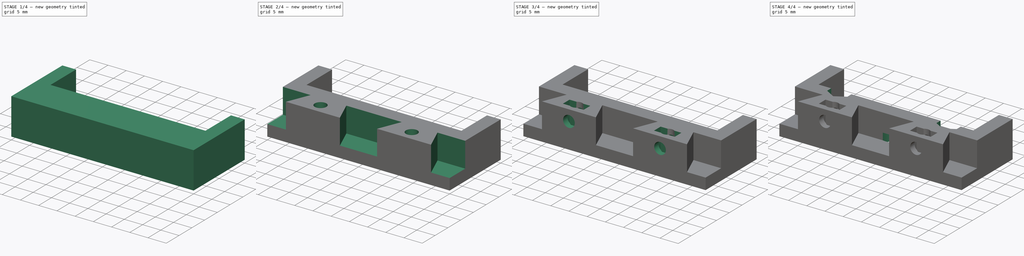
[diagram: build sequence overview — one tinted view per stage of 4, left to right]
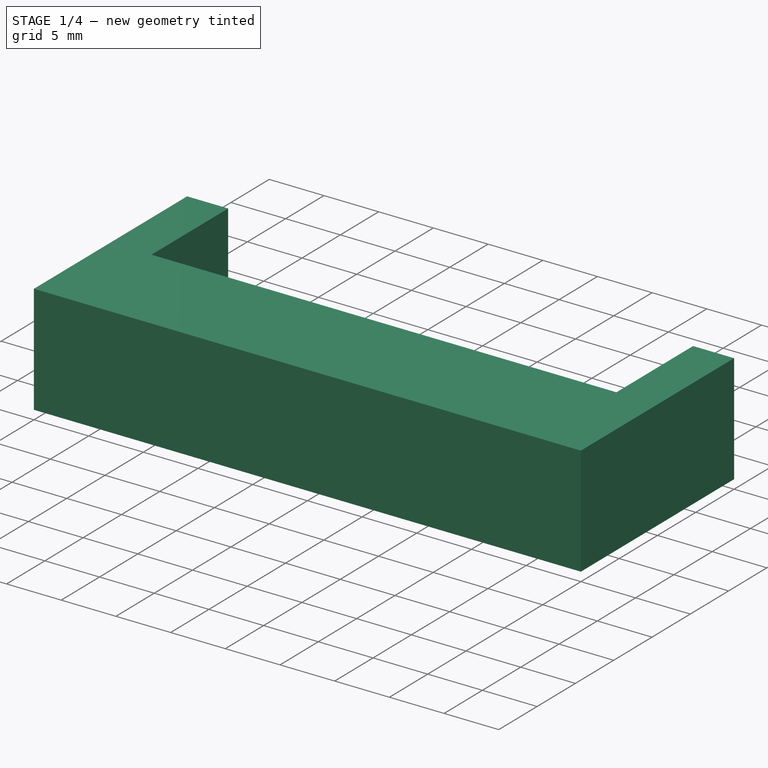
[diagram: stage 1 of 4 — iso view after this stage's code; geometry added in this stage tinted green]
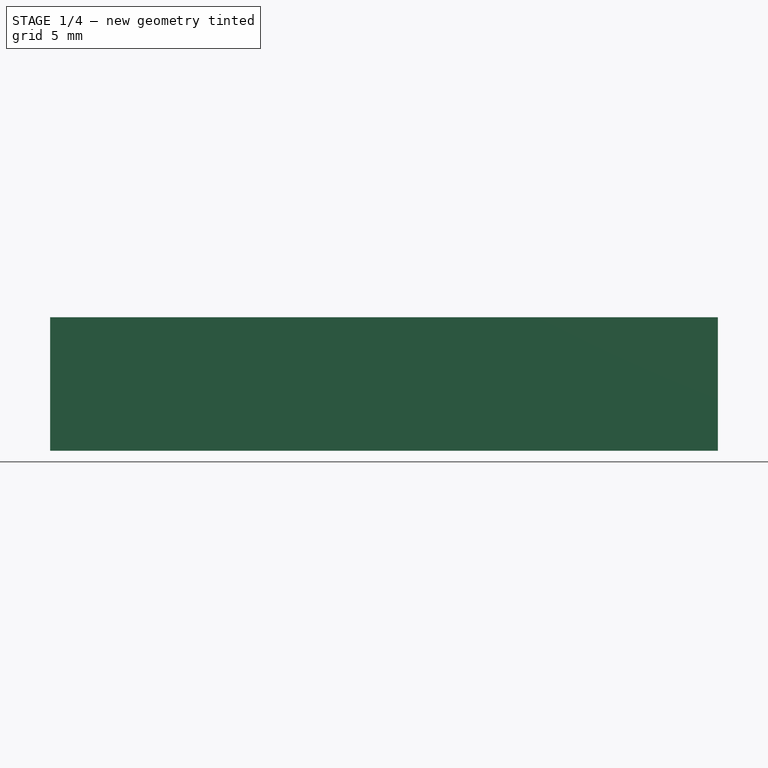
[diagram: stage 1 of 4 — front view after this stage's code; geometry added in this stage tinted green]
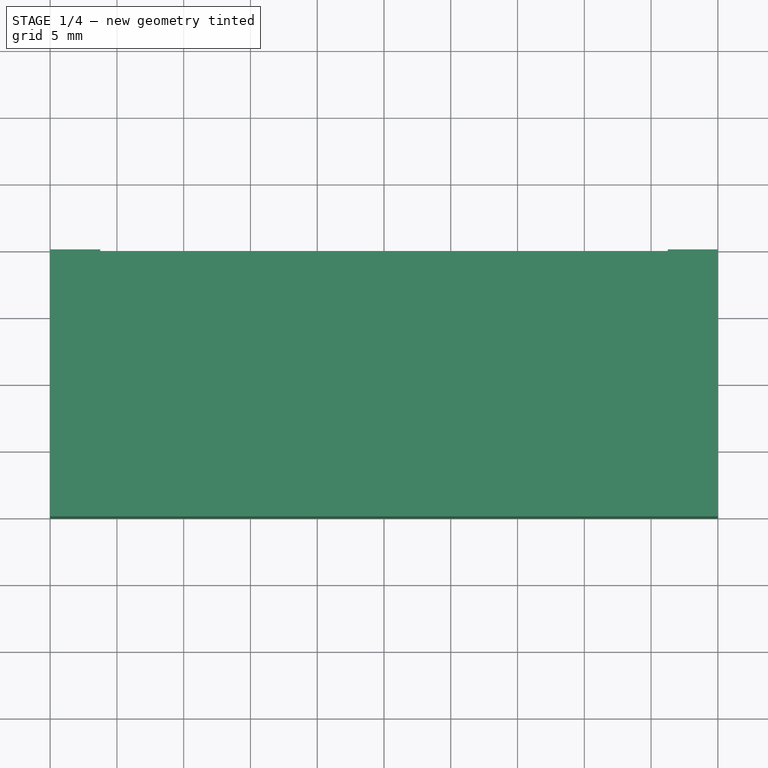
[diagram: stage 1 of 4 — top view after this stage's code; geometry added in this stage tinted green]
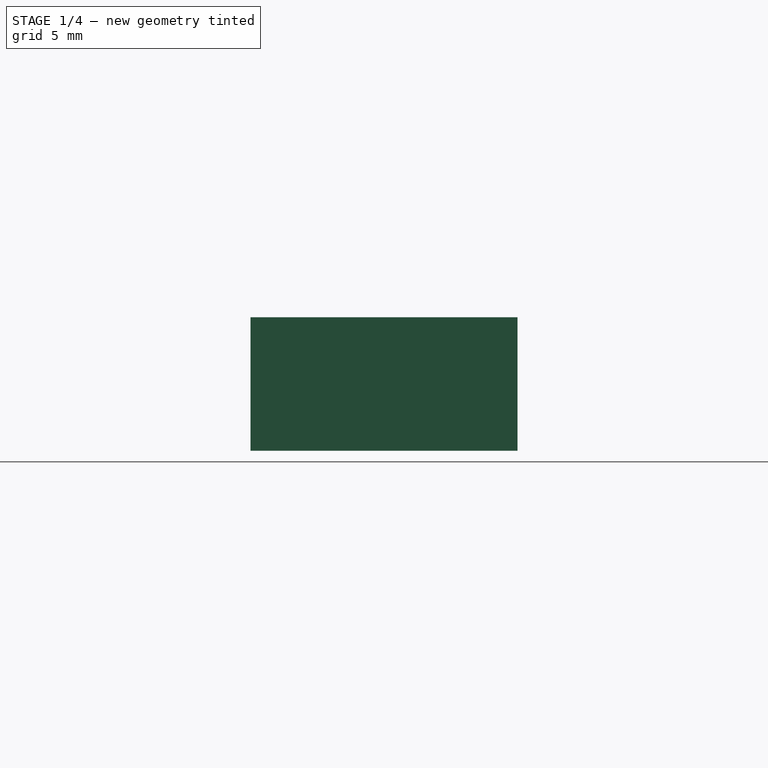
[diagram: stage 1 of 4 — right view after this stage's code; geometry added in this stage tinted green]
FCSTD DOCUMENT  (FreeCAD 0.17R13541 (Git))
Label: ball_caster_mount
License: All rights reserved
LicenseURL: http://en.wikipedia.org/wiki/All_rights_reserved
objects: Sketcher::SketchObject×10, PartDesign::Pocket×8, PartDesign::Pad×2, PartDesign::Body×1
note: 31 computed .brp shape members not serialized (recipe doc carries the construction recipe); baked Part::Feature solids carry a one-line shape summary decoded from their .brp

FEATURE [Sketcher::SketchObject] Sketch
  MapMode = 5
  Support = -> [XY_Plane]
  sketch-geometry (4):
    g0: LineSegment StartX=0 StartY=20 StartZ=0 EndX=50 EndY=20 EndZ=0
    g1: LineSegment StartX=50 StartY=20 StartZ=0 EndX=50 EndY=0 EndZ=0
    g2: LineSegment StartX=50 StartY=0 StartZ=0 EndX=0 EndY=0 EndZ=0
    g3: LineSegment StartX=0 StartY=0 StartZ=0 EndX=0 EndY=20 EndZ=0
  constraints (11):
    c: Coincident(g0,g1)
    c: Coincident(g1,g2)
    c: Coincident(g2,g3)
    c: Coincident(g3,g0)
    c: Horizontal(g0)
    c: Horizontal(g2)
    c: Vertical(g1)
    c: Vertical(g3)
    c: Coincident(g2,g-1)
    c: DistanceX(g0,g0) = 50
    c: DistanceY(g3,g3) = 20
FEATURE [PartDesign::Pad] Pad
  Length = 10
  Length2 = 100
  Profile = -> Sketch
  Type = 0
FEATURE [Sketcher::SketchObject] Sketch001
  MapMode = 5
  Placement = pos=(0,0,10) rot=(0,0,1;0rad)
  Support = -> [Pad]
  sketch-geometry (4):
    g0: LineSegment StartX=3.75 StartY=20 StartZ=0 EndX=46.25 EndY=20 EndZ=0
    g1: LineSegment StartX=46.25 StartY=20 StartZ=0 EndX=46.25 EndY=10 EndZ=0
    g2: LineSegment StartX=46.25 StartY=10 StartZ=0 EndX=3.75 EndY=10 EndZ=0
    g3: LineSegment StartX=3.75 StartY=10 StartZ=0 EndX=3.75 EndY=20 EndZ=0
  constraints (12):
    c: Coincident(g0,g1)
    c: Coincident(g1,g2)
    c: Coincident(g2,g3)
    c: Coincident(g3,g0)
    c: Horizontal(g0)
    c: Horizontal(g2)
    c: Vertical(g1)
    c: Vertical(g3)
    c: DistanceX(g0,g0) = 42.5
    c: DistanceY(g1,g1) = 10
    c: DistanceX(g-1,g2) = 3.75
    c: DistanceY(g-1,g2) = 10
FEATURE [PartDesign::Pocket] Pocket
  BaseFeature = -> Pad
  Length = 7
  Length2 = 100
  Profile = -> Sketch001
  Type = 0
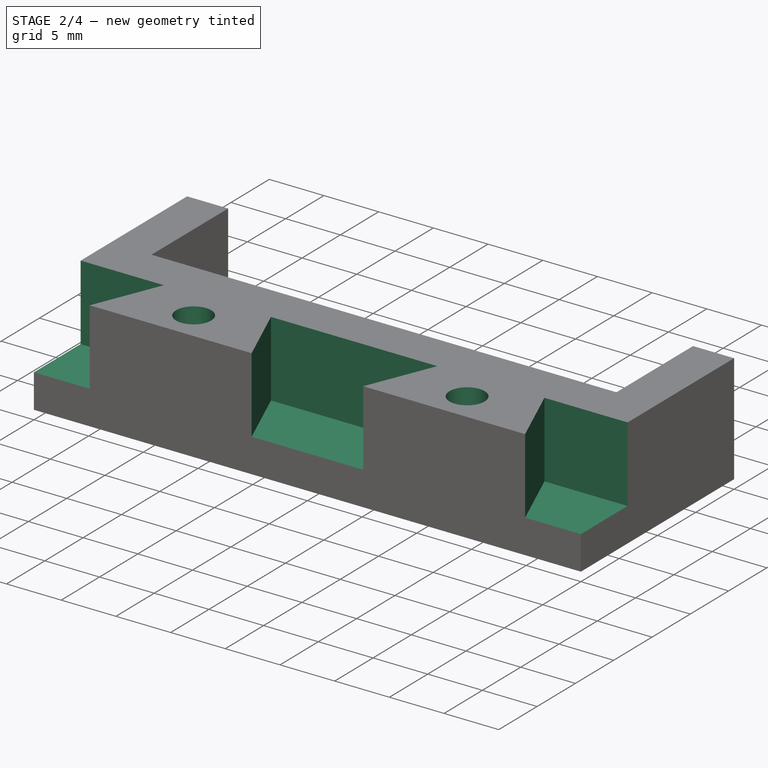
[diagram: stage 2 of 4 — iso view after this stage's code; geometry added in this stage tinted green]
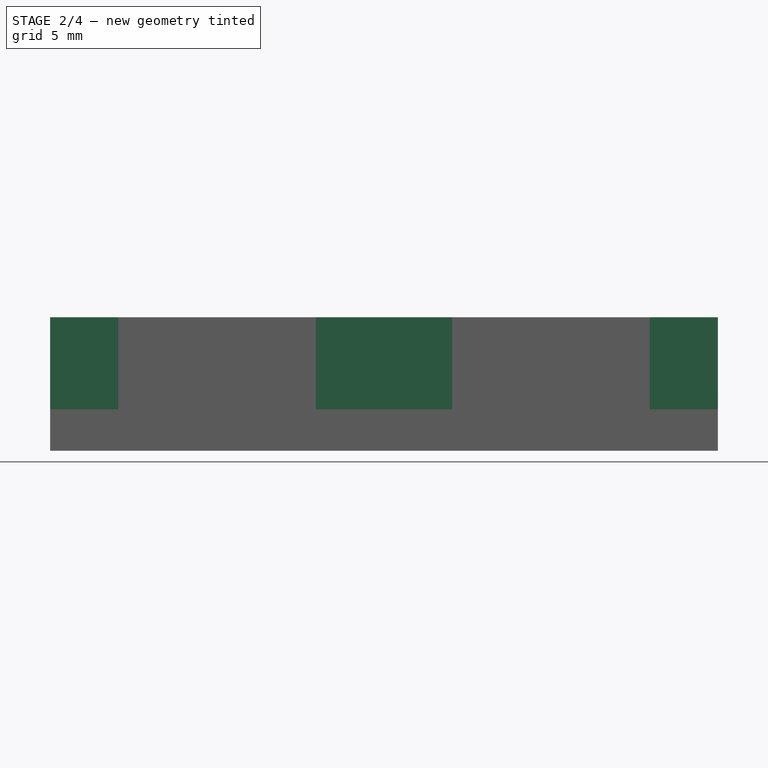
[diagram: stage 2 of 4 — front view after this stage's code; geometry added in this stage tinted green]
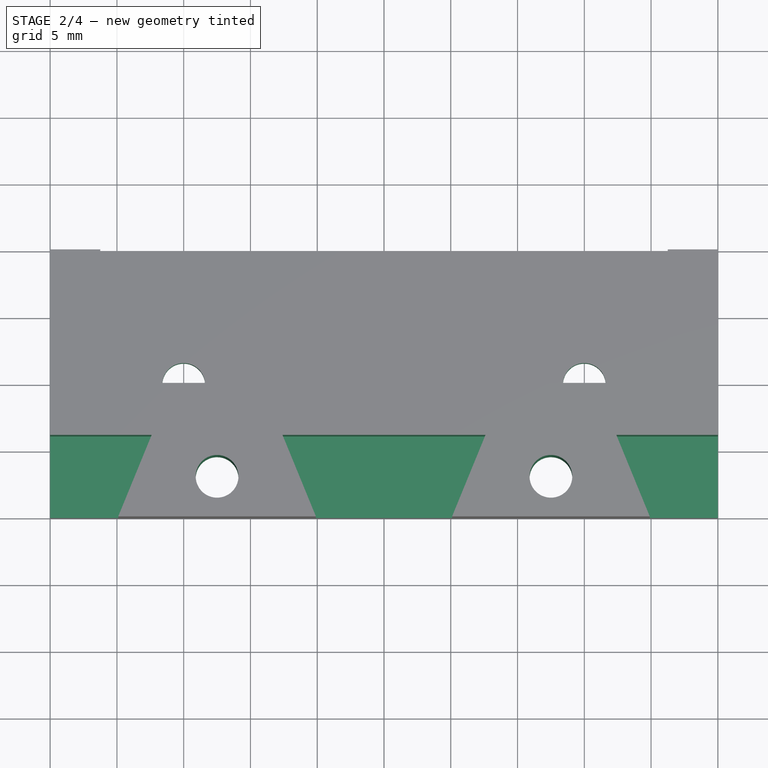
[diagram: stage 2 of 4 — top view after this stage's code; geometry added in this stage tinted green]
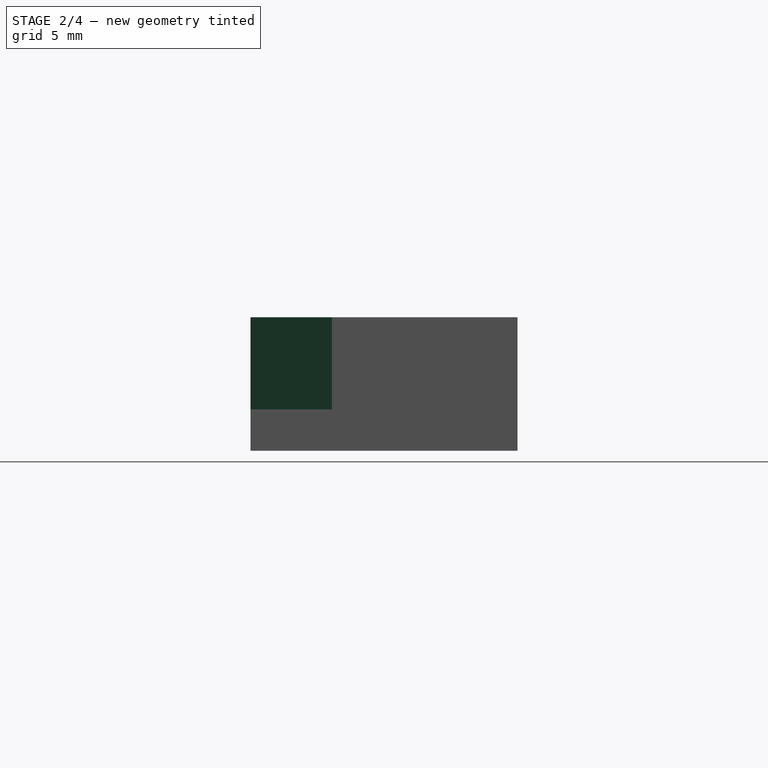
[diagram: stage 2 of 4 — right view after this stage's code; geometry added in this stage tinted green]
FEATURE [Sketcher::SketchObject] Sketch002
  MapMode = 5
  Placement = pos=(0,0,3) rot=(0,0,1;0rad)
  Support = -> [Pocket]
  sketch-geometry (2):
    g0: Circle CenterX=10 CenterY=10 CenterZ=0 NormalX=0 NormalY=0 NormalZ=1 AngleXU=0 Radius=1.6
    g1: Circle CenterX=40 CenterY=10 CenterZ=0 NormalX=0 NormalY=0 NormalZ=1 AngleXU=0 Radius=1.6
  constraints (6):
    c: Radius(g0) = 1.6
    c: Equal(g0,g1)
    c: Horizontal(g0,g1)
    c: DistanceX(g0,g1) = 30
    c: DistanceX(g-1,g0) = 10
    c: DistanceY(g-1,g0) = 10
FEATURE [PartDesign::Pocket] Pocket001
  BaseFeature = -> Pocket
  Length = 5
  Length2 = 100
  Profile = -> Sketch002
  Type = 0
FEATURE [Sketcher::SketchObject] Sketch003
  MapMode = 5
  Placement = pos=(0,0,10) rot=(0,0,1;0rad)
  Support = -> [Pocket001]
  sketch-geometry (12):
    g0: LineSegment StartX=5.1 StartY=0 StartZ=0 EndX=7.6 EndY=6.1 EndZ=0
    g1: LineSegment StartX=7.6 StartY=6.1 StartZ=0 EndX=0 EndY=6.1 EndZ=0
    g2: LineSegment StartX=0 StartY=0 StartZ=0 EndX=5.1 EndY=0 EndZ=0
    g3: LineSegment StartX=19.9 StartY=0 StartZ=0 EndX=17.4 EndY=6.1 EndZ=0
    g4: LineSegment StartX=17.4 StartY=6.1 StartZ=0 EndX=32.6 EndY=6.1 EndZ=0
    g5: LineSegment StartX=32.6 StartY=6.1 StartZ=0 EndX=30.1 EndY=0 EndZ=0
    g6: LineSegment StartX=42.4 StartY=6.1 StartZ=0 EndX=44.9 EndY=0 EndZ=0
    g7: LineSegment StartX=42.4 StartY=6.1 StartZ=0 EndX=50 EndY=6.1 EndZ=0
    g8: LineSegment StartX=44.9 StartY=0 StartZ=0 EndX=50 EndY=0 EndZ=0
    g9: LineSegment StartX=0 StartY=6.1 StartZ=0 EndX=0 EndY=0 EndZ=0
    g10: LineSegment StartX=19.9 StartY=0 StartZ=0 EndX=30.1 EndY=0 EndZ=0
    g11: LineSegment StartX=50 StartY=6.1 StartZ=0 EndX=50 EndY=0 EndZ=0
  constraints (35):
    c: Horizontal(g1)
    c: Horizontal(g2)
    c: Horizontal(g4)
    c: Horizontal(g7)
    c: Horizontal(g8)
    c: Coincident(g0,g1)
    c: Coincident(g0,g2)
    c: Coincident(g3,g4)
    c: Coincident(g4,g5)
    c: Horizontal(g10)
    c: Vertical(g11)
    c: Coincident(g1,g9)
    c: Coincident(g2,g9)
    c: Vertical(g9)
    c: Coincident(g2,g-1)
    c: Coincident(g3,g10)
    c: Coincident(g5,g10)
    c: Coincident(g6,g8)
    c: Coincident(g6,g7)
    c: Coincident(g7,g11)
    c: Coincident(g8,g11)
    c: PointOnObject(g-1,g10)
    c: PointOnObject(g-1,g8)
    c: DistanceX(g2,g2) = 5.1
    c: DistanceY(g-1,g1) = 6.1
    c: DistanceX(g1,g1) = 7.6
    c: DistanceY(g-1,g3) = 6.1
    c: DistanceX(g0,g3) = 9.8
    c: DistanceX(g10,g10) = 10.2
    c: DistanceX(g4,g4) = 15.2
    c: DistanceY(g-1,g6) = 6.1
    c: DistanceX(g8,g8) = 5.1
    c: DistanceX(g7,g7) = 7.6
    c: DistanceX(g4,g6) = 9.8
    c: DistanceX(g0,g3) = 14.8
FEATURE [PartDesign::Pocket] Pocket002
  BaseFeature = -> Pocket001
  Length = 6.9
  Length2 = 100
  Profile = -> Sketch003
  Type = 0
FEATURE [Sketcher::SketchObject] Sketch004
  MapMode = 5
  Placement = pos=(0,0,10) rot=(0,0,1;0rad)
  Support = -> [Pocket002]
  sketch-geometry (2):
    g0: Circle CenterX=12.5 CenterY=3 CenterZ=0 NormalX=0 NormalY=0 NormalZ=1 AngleXU=0 Radius=1.6
    g1: Circle CenterX=37.5 CenterY=3 CenterZ=0 NormalX=0 NormalY=0 NormalZ=1 AngleXU=0 Radius=1.6
  constraints (6):
    c: Radius(g0) = 1.6
    c: Equal(g0,g1)
    c: Horizontal(g0,g1)
    c: DistanceX(g0,g1) = 25
    c: DistanceY(g-1,g0) = 3
    c: DistanceX(g-1,g0) = 12.5
FEATURE [PartDesign::Pocket] Pocket003
  BaseFeature = -> Pocket002
  Length = 10
  Length2 = 100
  Profile = -> Sketch004
  Type = 0
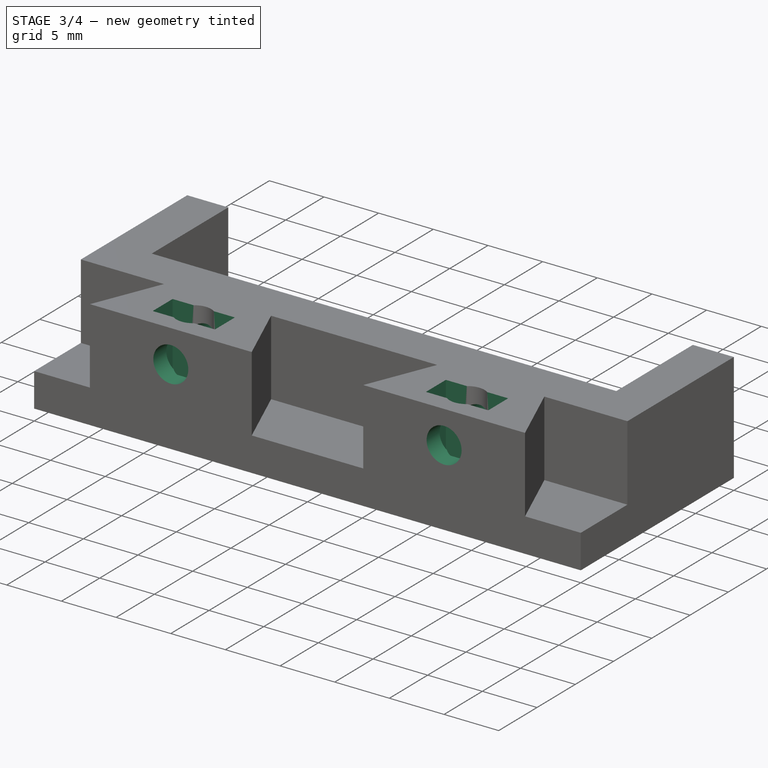
[diagram: stage 3 of 4 — iso view after this stage's code; geometry added in this stage tinted green]
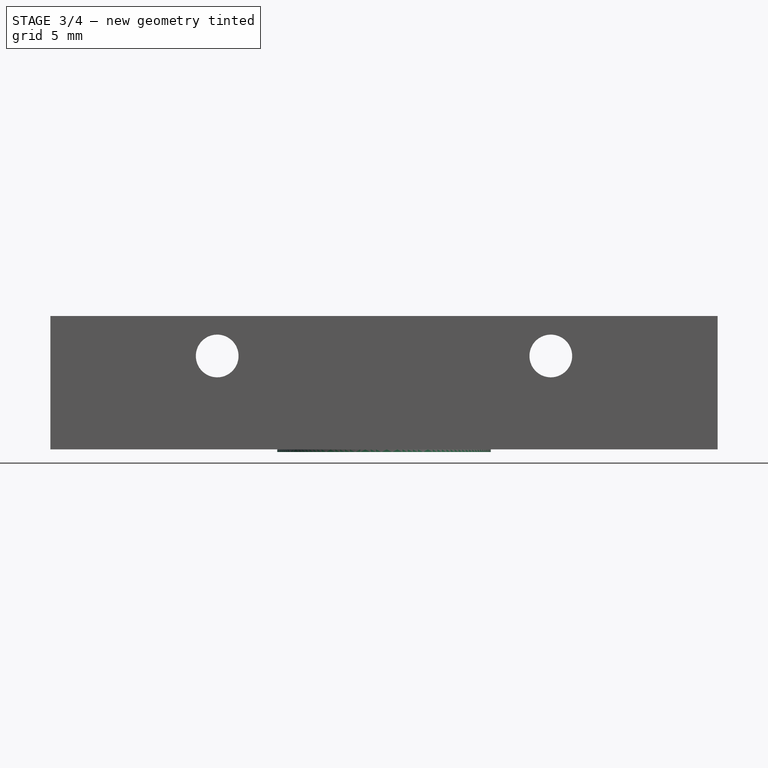
[diagram: stage 3 of 4 — front view after this stage's code; geometry added in this stage tinted green]
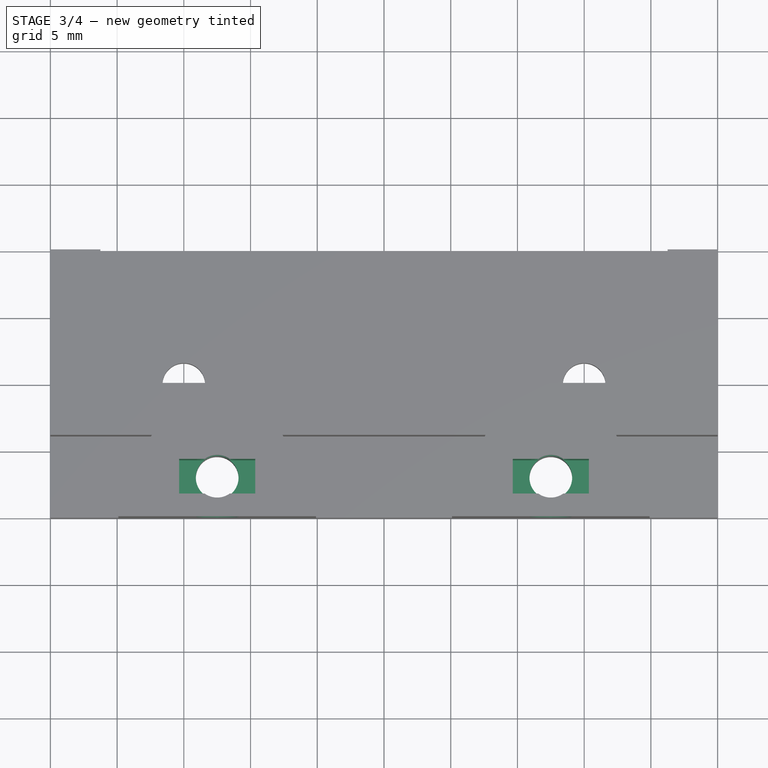
[diagram: stage 3 of 4 — top view after this stage's code; geometry added in this stage tinted green]
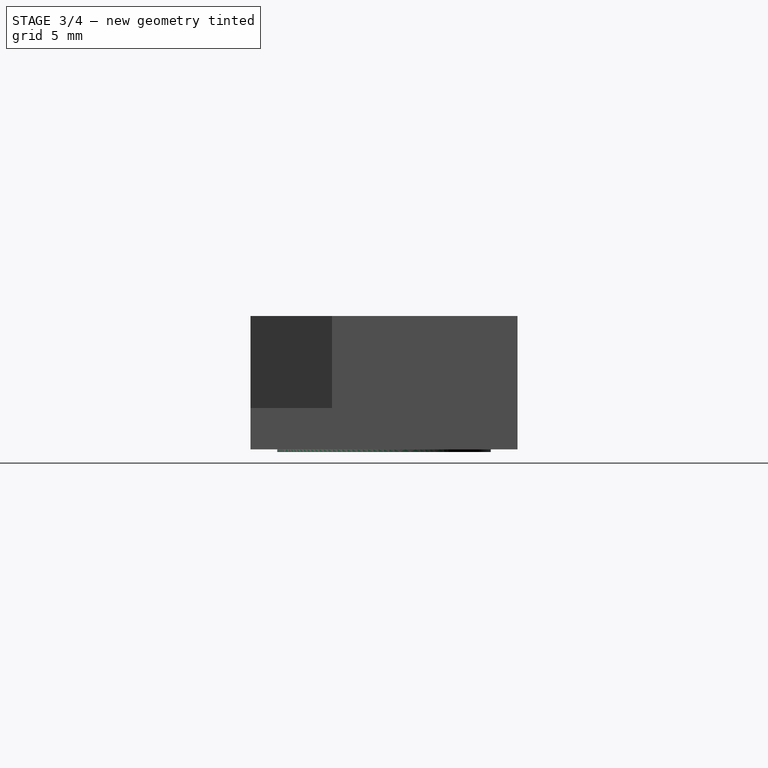
[diagram: stage 3 of 4 — right view after this stage's code; geometry added in this stage tinted green]
FEATURE [Sketcher::SketchObject] Sketch005
  MapMode = 5
  Placement = pos=(0,0,10) rot=(0,0,1;0rad)
  Support = -> [Pocket003]
  sketch-geometry (8):
    g0: LineSegment StartX=9.65 StartY=4.3 StartZ=0 EndX=15.35 EndY=4.3 EndZ=0
    g1: LineSegment StartX=15.35 StartY=4.3 StartZ=0 EndX=15.35 EndY=1.7 EndZ=0
    g2: LineSegment StartX=15.35 StartY=1.7 StartZ=0 EndX=9.65 EndY=1.7 EndZ=0
    g3: LineSegment StartX=9.65 StartY=1.7 StartZ=0 EndX=9.65 EndY=4.3 EndZ=0
    g4: LineSegment StartX=34.65 StartY=4.3 StartZ=0 EndX=40.35 EndY=4.3 EndZ=0
    g5: LineSegment StartX=40.35 StartY=4.3 StartZ=0 EndX=40.35 EndY=1.7 EndZ=0
    g6: LineSegment StartX=40.35 StartY=1.7 StartZ=0 EndX=34.65 EndY=1.7 EndZ=0
    g7: LineSegment StartX=34.65 StartY=1.7 StartZ=0 EndX=34.65 EndY=4.3 EndZ=0
  constraints (24):
    c: Coincident(g0,g1)
    c: Coincident(g1,g2)
    c: Coincident(g2,g3)
    c: Coincident(g3,g0)
    c: Horizontal(g0)
    c: Horizontal(g2)
    c: Vertical(g1)
    c: Vertical(g3)
    c: Coincident(g4,g5)
    c: Coincident(g5,g6)
    c: Coincident(g6,g7)
    c: Coincident(g7,g4)
    c: Horizontal(g4)
    c: Horizontal(g6)
    c: Vertical(g5)
    c: Vertical(g7)
    c: Equal(g3,g7)
    c: Equal(g0,g4)
    c: DistanceX(g0,g0) = 5.7
    c: DistanceY(g3,g3) = 2.6
    c: DistanceX(g1,g6) = 19.3
    c: DistanceX(g-1,g2) = 9.65
    c: DistanceY(g-1,g2) = 1.7
    c: DistanceY(g-1,g6) = 1.7
FEATURE [PartDesign::Pocket] Pocket004
  BaseFeature = -> Pocket003
  Length = 6.15
  Length2 = 100
  Profile = -> Sketch005
  Type = 0
FEATURE [Sketcher::SketchObject] Sketch006
  MapMode = 5
  Placement = pos=(0,0,0) rot=(1,0,0;1.5708rad)
  Support = -> [Pocket004]
  sketch-geometry (2):
    g0: Circle CenterX=12.5 CenterY=7 CenterZ=0 NormalX=0 NormalY=0 NormalZ=1 AngleXU=0 Radius=1.6
    g1: Circle CenterX=37.5 CenterY=7 CenterZ=0 NormalX=0 NormalY=0 NormalZ=1 AngleXU=0 Radius=1.6
  constraints (6):
    c: Horizontal(g0,g1)
    c: Radius(g0) = 1.6
    c: Equal(g0,g1)
    c: DistanceX(g0,g1) = 25
    c: DistanceY(g-1,g0) = 7
    c: DistanceX(g-1,g0) = 12.5
FEATURE [PartDesign::Pocket] Pocket005
  BaseFeature = -> Pocket004
  Length = 10
  Length2 = 100
  Profile = -> Sketch006
  Type = 0
FEATURE [Sketcher::SketchObject] Sketch007
  MapMode = 5
  Placement = pos=(0,0,0) rot=(1,0,0;3.14159rad)
  Support = -> [Pocket005]
  sketch-geometry (1):
    g0: Circle CenterX=25 CenterY=-10 CenterZ=0 NormalX=0 NormalY=0 NormalZ=1 AngleXU=0 Radius=8
  constraints (3):
    c: Radius(g0) = 8
    c: DistanceY(g0,g-1) = 10
    c: DistanceX(g-1,g0) = 25
FEATURE [PartDesign::Pad] Pad001
  BaseFeature = -> Pocket005
  Length = 0.2
  Length2 = 100
  Profile = -> Sketch007
  Type = 0
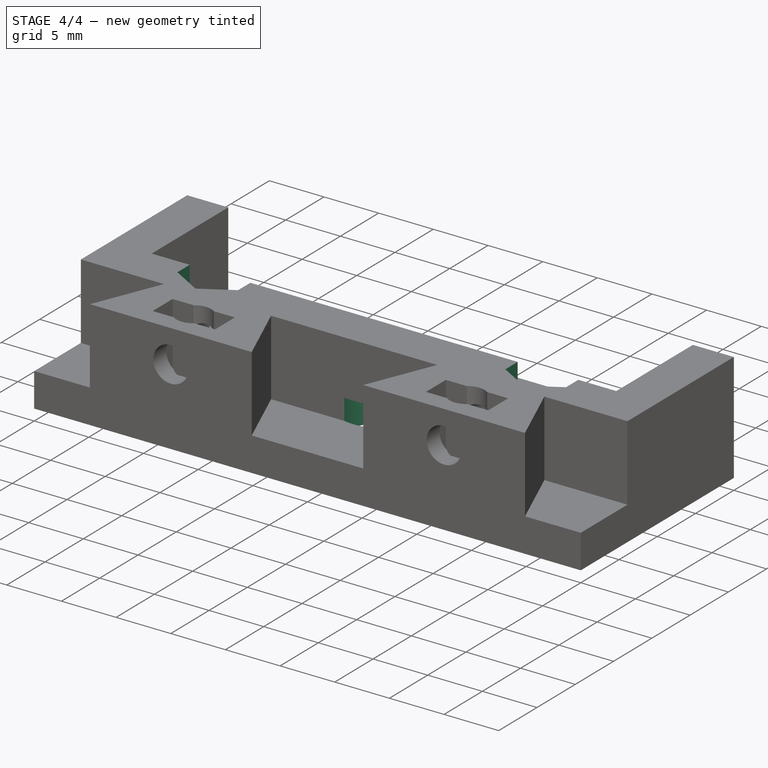
[diagram: stage 4 of 4 — iso view after this stage's code; geometry added in this stage tinted green]
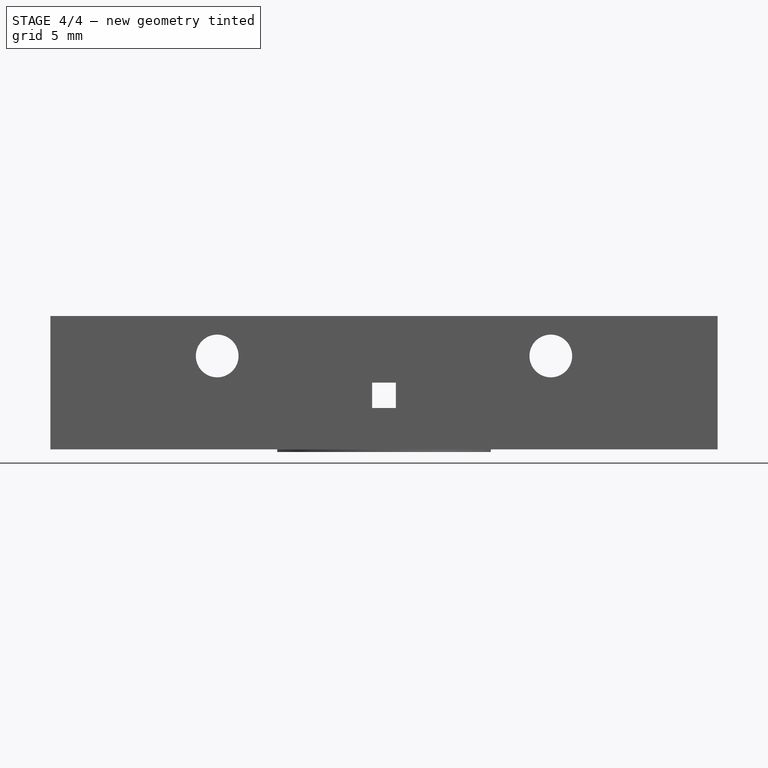
[diagram: stage 4 of 4 — front view after this stage's code; geometry added in this stage tinted green]
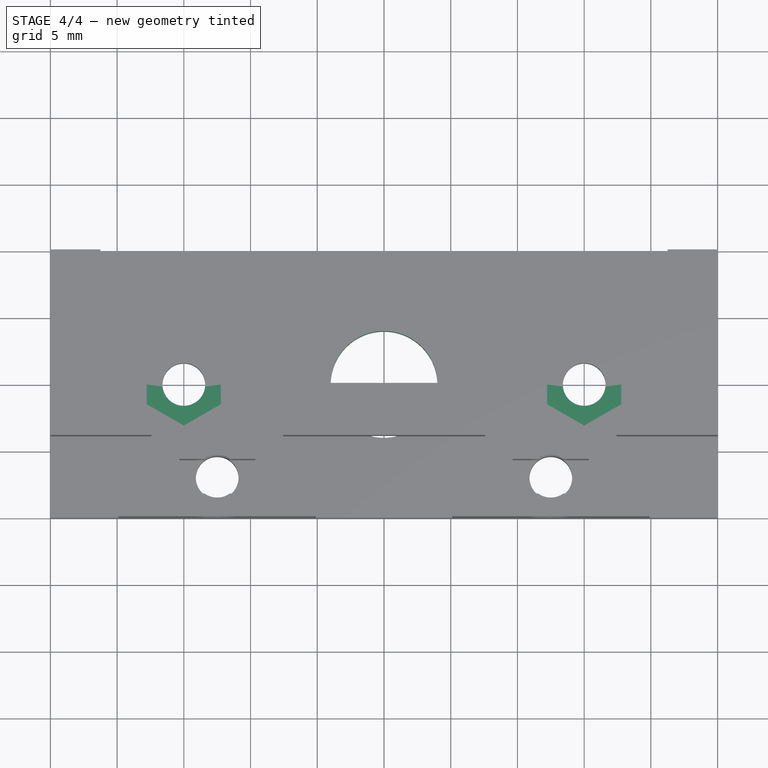
[diagram: stage 4 of 4 — top view after this stage's code; geometry added in this stage tinted green]
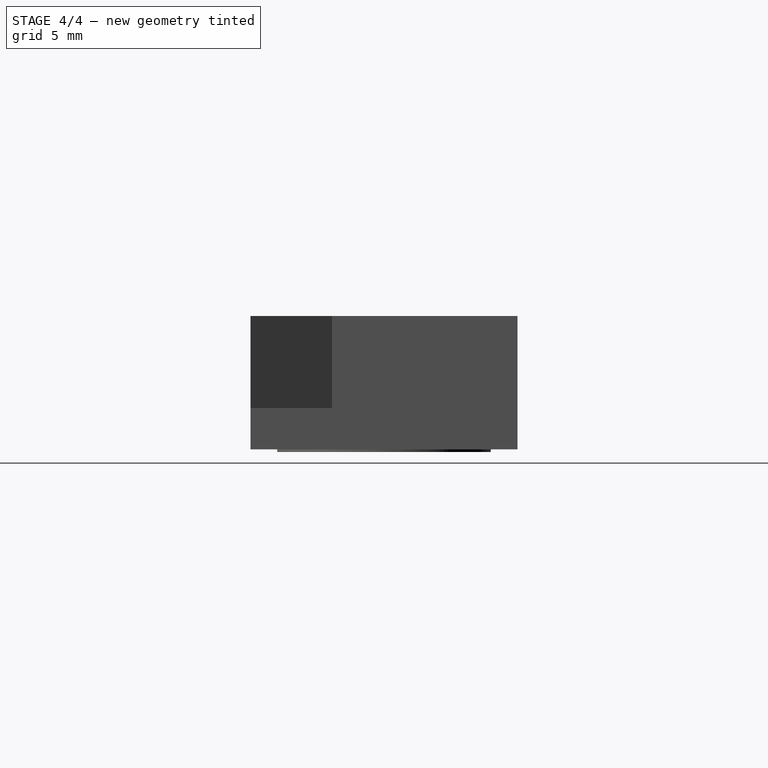
[diagram: stage 4 of 4 — right view after this stage's code; geometry added in this stage tinted green]
FEATURE [Sketcher::SketchObject] Sketch008
  MapMode = 5
  Placement = pos=(0,0,3) rot=(1,0,0;3.14159rad)
  Support = -> [Pad001]
  sketch-geometry (1):
    g0: Circle CenterX=25 CenterY=-10 CenterZ=0 NormalX=0 NormalY=0 NormalZ=1 AngleXU=0 Radius=4
  constraints (3):
    c: DistanceX(g-1,g0) = 25
    c: DistanceY(g0,g-1) = 10
    c: Radius(g0) = 4
FEATURE [PartDesign::Pocket] Pocket006
  BaseFeature = -> Pad001
  Length = 2
  Length2 = 4
  Profile = -> Sketch008
  Type = 4
FEATURE [Sketcher::SketchObject] Sketch009
  MapMode = 5
  Placement = pos=(0,0,10) rot=(0,0,1;0rad)
  Support = -> [Pocket006]
  sketch-geometry (14):
    g0: LineSegment StartX=12.775 StartY=8.39785 StartZ=0 EndX=12.775 EndY=11.6021 EndZ=0
    g1: LineSegment StartX=12.775 StartY=11.6021 StartZ=0 EndX=10 EndY=13.2043 EndZ=0
    g2: LineSegment StartX=10 StartY=13.2043 StartZ=0 EndX=7.225 EndY=11.6021 EndZ=0
    g3: LineSegment StartX=7.225 StartY=11.6021 StartZ=0 EndX=7.225 EndY=8.39785 EndZ=0
    g4: LineSegment StartX=7.225 StartY=8.39785 StartZ=0 EndX=10 EndY=6.79571 EndZ=0
    g5: LineSegment StartX=10 StartY=6.79571 StartZ=0 EndX=12.775 EndY=8.39785 EndZ=0
    g6: Circle [constr] CenterX=10 CenterY=10 CenterZ=0 NormalX=0 NormalY=0 NormalZ=1 AngleXU=0 Radius=3.20429
    g7: LineSegment StartX=42.775 StartY=8.39785 StartZ=0 EndX=42.775 EndY=11.6021 EndZ=0
    g8: LineSegment StartX=42.775 StartY=11.6021 StartZ=0 EndX=40 EndY=13.2043 EndZ=0
    g9: LineSegment StartX=40 StartY=13.2043 StartZ=0 EndX=37.225 EndY=11.6021 EndZ=0
    g10: LineSegment StartX=37.225 StartY=11.6021 StartZ=0 EndX=37.225 EndY=8.39785 EndZ=0
    g11: LineSegment StartX=37.225 StartY=8.39785 StartZ=0 EndX=40 EndY=6.79571 EndZ=0
    g12: LineSegment StartX=40 StartY=6.79571 StartZ=0 EndX=42.775 EndY=8.39785 EndZ=0
    g13: Circle [constr] CenterX=40 CenterY=10 CenterZ=0 NormalX=0 NormalY=0 NormalZ=1 AngleXU=0 Radius=3.20429
  constraints (34):
    c: Coincident(g0,g1)
    c: Coincident(g1,g2)
    c: Coincident(g2,g3)
    c: Coincident(g3,g4)
    c: Coincident(g4,g5)
    c: Coincident(g5,g0)
    c: Equal(g0, g1-g5) x5
    c: PointOnObject(g0,g6)
    c: PointOnObject(g1,g6)
    c: PointOnObject(g2,g6)
    c: PointOnObject(g3,g6)
    c: PointOnObject(g4,g6)
    c: PointOnObject(g5,g6)
    c: Coincident(g7,g8)
    c: Coincident(g8,g9)
    c: Coincident(g9,g10)
    c: Coincident(g10,g11)
    c: Coincident(g11,g12)
    c: Coincident(g12,g7)
    c: Equal(g7, g8-g12) x5
    c: PointOnObject(g7,g13)
    c: PointOnObject(g8,g13)
    c: PointOnObject(g9,g13)
    c: PointOnObject(g10,g13)
    c: PointOnObject(g11,g13)
    c: PointOnObject(g12,g13)
    c: Vertical(g3)
    c: Vertical(g10)
    c: Horizontal(g6,g13)
    c: DistanceX(g6,g13) = 30
    c: DistanceY(g-1,g6) = 10
    c: DistanceX(g-1,g6) = 10
    c: DistanceX(g2,g0) = 5.55
    c: DistanceX(g9,g7) = 5.55
FEATURE [PartDesign::Pocket] Pocket007
  BaseFeature = -> Pocket006
  Length = 7
  Length2 = 100
  Profile = -> Sketch009
  Type = 0
FEATURE [PartDesign::Body] Body
  Group = -> [Sketch,Pad,Sketch001,Pocket,Sketch002,Pocket001,Sketch003,Pocket002,Sketch004,Pocket003,Sketch005,Pocket004,Sketch006,Pocket005,Sketch007,Pad001,Sketch008,Pocket006,Sketch009,Pocket007]
  Origin = -> Origin
  Tip = -> Pocket007
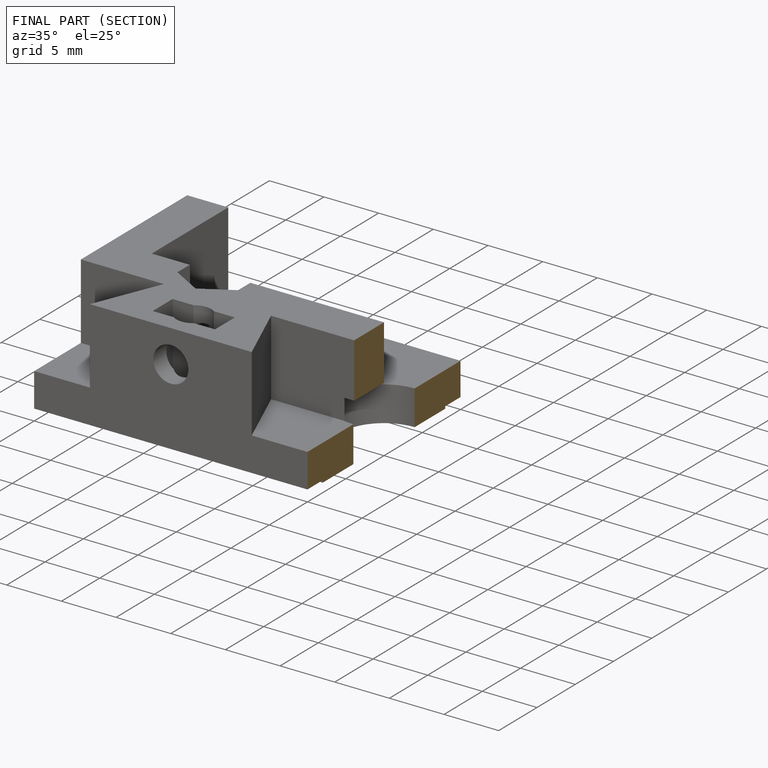
[diagram: finished part — half-section view (interior)]
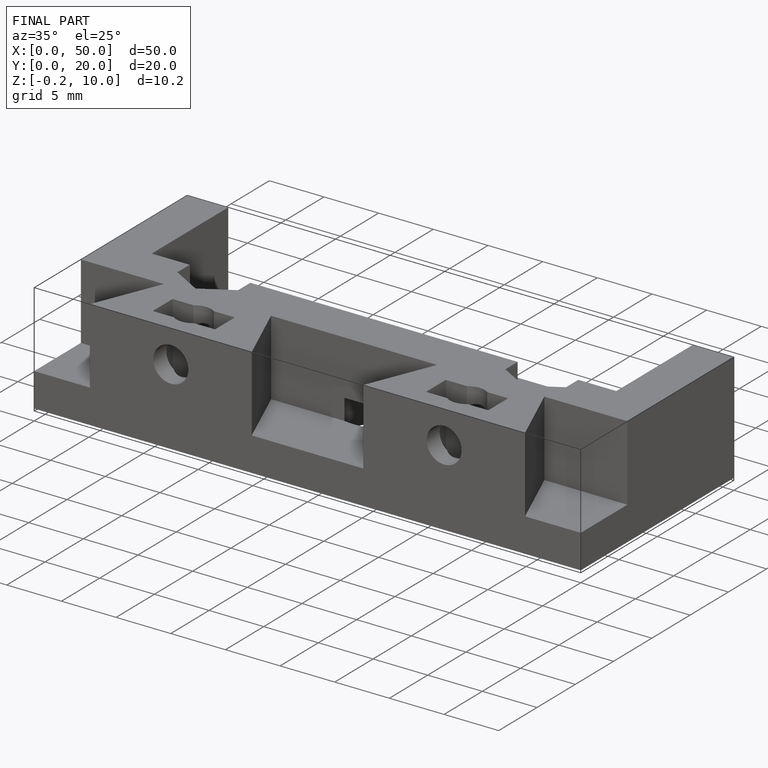
[diagram: finished part — iso view with bounding-box wireframe]
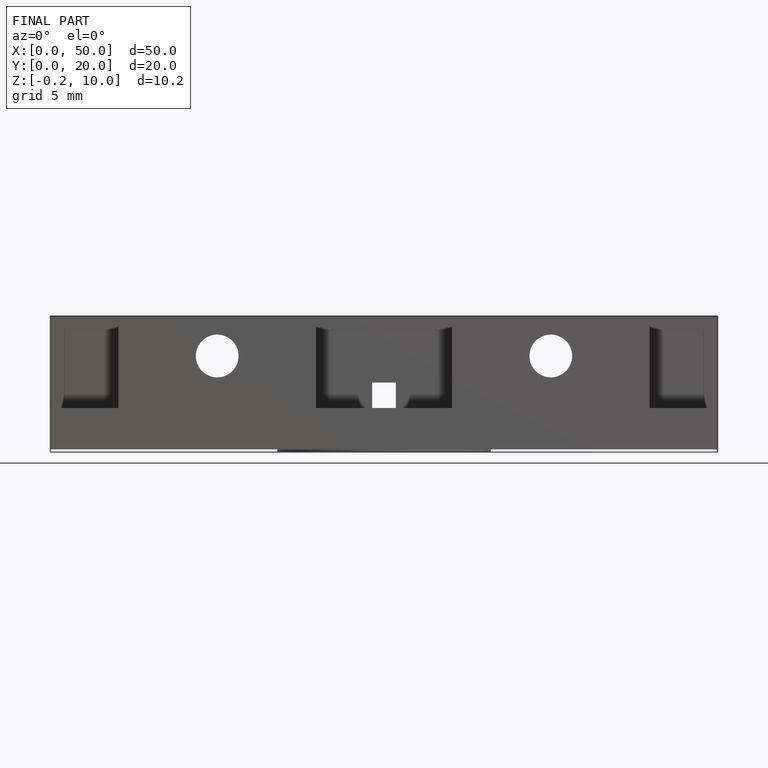
[diagram: finished part — front view with bounding-box wireframe]
